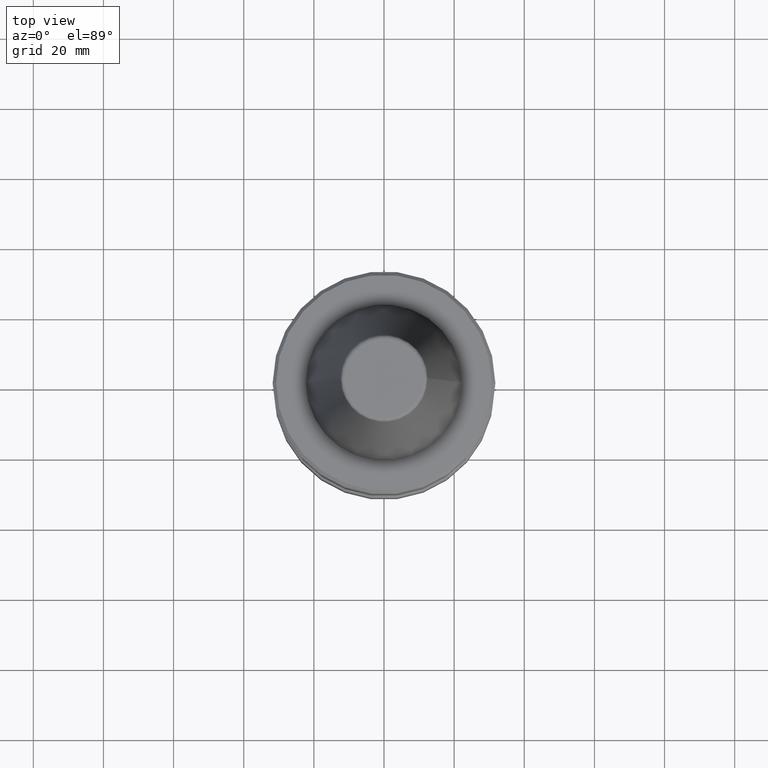
[diagram: clean part render]
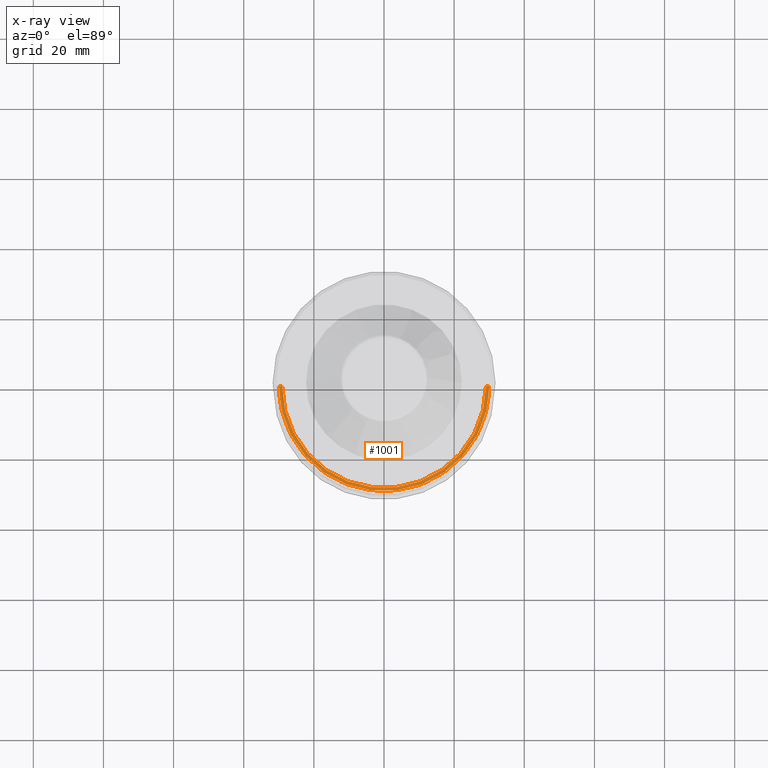
[diagram: x-ray — body ghosted, one internal face saturated and labeled with its STEP entity id]
A machine part, top view, then the same camera in x-ray: the body is ghosted and one INTERNAL B-rep face — a face not visible from any outside direction — is saturated and labeled: STEP entity #1001.
In plain terms, the highlighted face is a freeform B-spline surface patch.
Its self-contained STEP definition (entity closure, byte-faithful):
#72 = CARTESIAN_POINT ( 'NONE',  ( 29.07508554026801700, 0.0000000000000000000, -59.59800505272688300 ) ) ;
#236 = CIRCLE ( 'NONE', #1152, 29.07508554026801700 ) ;
#419 = CARTESIAN_POINT ( 'NONE',  ( 29.07508554026801700, -7.121342088364944100E-015, -59.59800505272688300 ) ) ;
#421 = CARTESIAN_POINT ( 'NONE',  ( 29.07508554026800200, -58.15017108053602600, -59.59800505272688300 ) ) ;
#422 = CARTESIAN_POINT ( 'NONE',  ( -29.07508554026802400, -58.15017108053601200, -59.59800505272688300 ) ) ;
#424 = CARTESIAN_POINT ( 'NONE',  ( -29.07508554026801700, 3.560671044182472000E-015, -59.59800505272688300 ) ) ;
#425 = CARTESIAN_POINT ( 'NONE',  ( 29.07508554026801700, -7.121342088364944100E-015, -60.49138713409462300 ) ) ;
#426 = CIRCLE ( 'NONE', #1448, 0.4466910406838720000 ) ;
#427 = CARTESIAN_POINT ( 'NONE',  ( 29.07508554026799900, -58.15017108053603300, -60.49138713409463000 ) ) ;
#430 = CARTESIAN_POINT ( 'NONE',  ( -29.07508554026802400, -58.15017108053601200, -60.49138713409463000 ) ) ;
#433 = CARTESIAN_POINT ( 'NONE',  ( -29.07508554026801700, 3.560671044182472000E-015, -60.49138713409462300 ) ) ;
#437 = CARTESIAN_POINT ( 'NONE',  ( 29.96846762163575700, -7.340157589637465000E-015, -60.49138713409462300 ) ) ;
#442 = CARTESIAN_POINT ( 'NONE',  ( 29.96846762163574200, -59.93693524327152000, -60.49138713409463000 ) ) ;
#443 = CARTESIAN_POINT ( 'NONE',  ( -29.96846762163576400, -59.93693524327149900, -60.49138713409463000 ) ) ;
#445 = CARTESIAN_POINT ( 'NONE',  ( -29.96846762163575700, 3.670078794818731700E-015, -60.49138713409462300 ) ) ;
#446 = CARTESIAN_POINT ( 'NONE',  ( 29.96846762163576000, -7.340157589637465000E-015, -59.59800505272688300 ) ) ;
#448 = CARTESIAN_POINT ( 'NONE',  ( 29.96846762163574600, -59.93693524327151300, -59.59800505272688300 ) ) ;
#452 = CARTESIAN_POINT ( 'NONE',  ( -29.96846762163576000, 3.670078794818731700E-015, -59.59800505272688300 ) ) ;
#460 = FACE_OUTER_BOUND ( 'NONE', #1390, .T. ) ;
#470 = CARTESIAN_POINT ( 'NONE',  ( -29.96846762163576700, -59.93693524327149200, -59.59800505272688300 ) ) ;
#483 = CARTESIAN_POINT ( 'NONE',  ( -29.96846762163575700, 3.670078794818731700E-015, -59.59800505272688300 ) ) ;
#524 = CARTESIAN_POINT ( 'NONE',  ( 29.96846762163575700, 0.0000000000000000000, -59.59800505272688300 ) ) ;
#586 = EDGE_CURVE ( 'NONE', #1444, #1230, #236, .T. ) ;
#611 =( BOUNDED_SURFACE ( )  B_SPLINE_SURFACE ( 3, 3, ( 
 ( #452, #470, #448, #446 ),
 ( #445, #443, #442, #437 ),
 ( #433, #430, #427, #425 ),
 ( #424, #422, #421, #419 ) ),
 .UNSPECIFIED., .F., .F., .T. ) 
 B_SPLINE_SURFACE_WITH_KNOTS ( ( 4, 4 ),
 ( 4, 4 ),
 ( 0.0000000000000000000, 1.000000000000000000 ),
 ( 0.0000000000000000000, 1.000000000000000000 ),
 .UNSPECIFIED. ) 
 GEOMETRIC_REPRESENTATION_ITEM ( )  RATIONAL_B_SPLINE_SURFACE ( (
 ( 1.000000000000000000, 0.3333333333333334300, 0.3333333333333334300, 1.000000000000000000),
 ( 0.3333333333333333700, 0.1111111111111111600, 0.1111111111111111600, 0.3333333333333333700),
 ( 0.3333333333333333700, 0.1111111111111111600, 0.1111111111111111600, 0.3333333333333333700),
 ( 1.000000000000000000, 0.3333333333333334300, 0.3333333333333334300, 1.000000000000000000) ) ) 
 REPRESENTATION_ITEM ( '' )  SURFACE ( )  );
#656 = EDGE_CURVE ( 'NONE', #1773, #1230, #426, .T. ) ;
#735 = DIRECTION ( 'NONE',  ( -1.000000000000000000, 1.224646799147347300E-016, 0.0000000000000000000 ) ) ;
#884 = DIRECTION ( 'NONE',  ( 1.000000000000000000, 0.0000000000000000000, 0.0000000000000000000 ) ) ;
#885 = DIRECTION ( 'NONE',  ( 0.0000000000000000000, 1.000000000000000000, 0.0000000000000000000 ) ) ;
#886 = CARTESIAN_POINT ( 'NONE',  ( 29.52177658095188700, 0.0000000000000000000, -59.59800505272688300 ) ) ;
#1001 = ADVANCED_FACE ( 'NONE', ( #460 ), #611, .T. ) ;
#1152 = AXIS2_PLACEMENT_3D ( 'NONE', #1429, #1424, #1630 ) ;
#1208 = AXIS2_PLACEMENT_3D ( 'NONE', #1304, #1376, #735 ) ;
#1230 = VERTEX_POINT ( 'NONE', #72 ) ;
#1245 = CIRCLE ( 'NONE', #1679, 29.96846762163575700 ) ;
#1304 = CARTESIAN_POINT ( 'NONE',  ( -29.52177658095188700, 3.615374919500601500E-015, -59.59800505272688300 ) ) ;
#1310 = CARTESIAN_POINT ( 'NONE',  ( 0.0000000000000000000, 0.0000000000000000000, -59.59800505272688300 ) ) ;
#1335 = CIRCLE ( 'NONE', #1208, 0.4466910406838720000 ) ;
#1376 = DIRECTION ( 'NONE',  ( -1.224646799147353200E-016, -1.000000000000000000, 0.0000000000000000000 ) ) ;
#1390 = EDGE_LOOP ( 'NONE', ( #1936, #1881, #1484, #1405 ) ) ;
#1405 = ORIENTED_EDGE ( 'NONE', *, *, #656, .F. ) ;
#1411 = EDGE_CURVE ( 'NONE', #1530, #1444, #1335, .T. ) ;
#1424 = DIRECTION ( 'NONE',  ( 0.0000000000000000000, 0.0000000000000000000, 1.000000000000000000 ) ) ;
#1429 = CARTESIAN_POINT ( 'NONE',  ( 0.0000000000000000000, 0.0000000000000000000, -59.59800505272688300 ) ) ;
#1444 = VERTEX_POINT ( 'NONE', #1696 ) ;
#1448 = AXIS2_PLACEMENT_3D ( 'NONE', #886, #885, #884 ) ;
#1465 = EDGE_CURVE ( 'NONE', #1530, #1773, #1245, .T. ) ;
#1484 = ORIENTED_EDGE ( 'NONE', *, *, #586, .T. ) ;
#1530 = VERTEX_POINT ( 'NONE', #483 ) ;
#1630 = DIRECTION ( 'NONE',  ( 1.000000000000000000, 0.0000000000000000000, 0.0000000000000000000 ) ) ;
#1679 = AXIS2_PLACEMENT_3D ( 'NONE', #1310, #1734, #2017 ) ;
#1696 = CARTESIAN_POINT ( 'NONE',  ( -29.07508554026801700, 3.615374919500602300E-015, -59.59800505272688300 ) ) ;
#1734 = DIRECTION ( 'NONE',  ( 0.0000000000000000000, 0.0000000000000000000, 1.000000000000000000 ) ) ;
#1773 = VERTEX_POINT ( 'NONE', #524 ) ;
#1881 = ORIENTED_EDGE ( 'NONE', *, *, #1411, .T. ) ;
#1936 = ORIENTED_EDGE ( 'NONE', *, *, #1465, .F. ) ;
#2017 = DIRECTION ( 'NONE',  ( 1.000000000000000000, 0.0000000000000000000, 0.0000000000000000000 ) ) ;